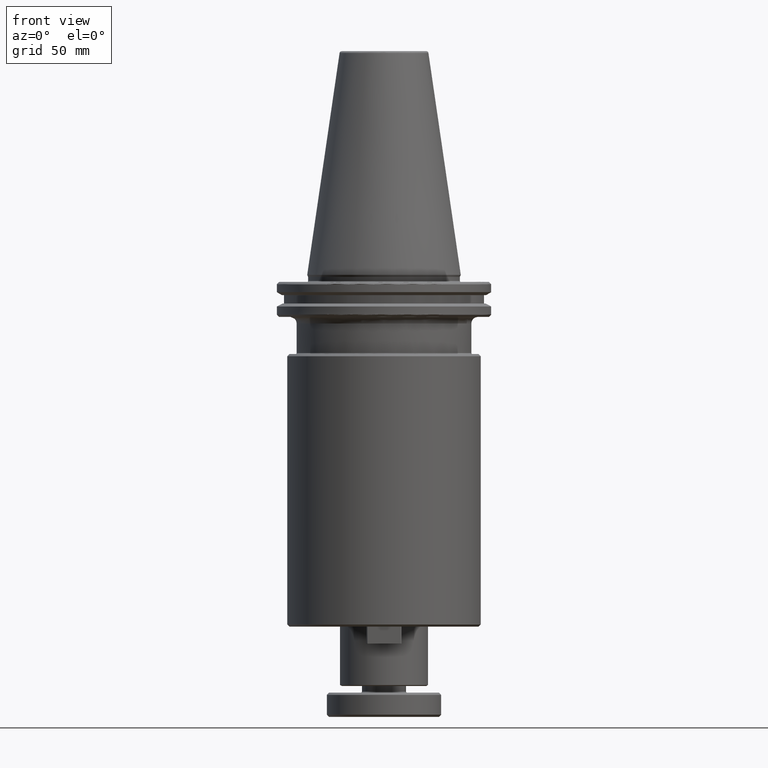
[diagram: clean part render]
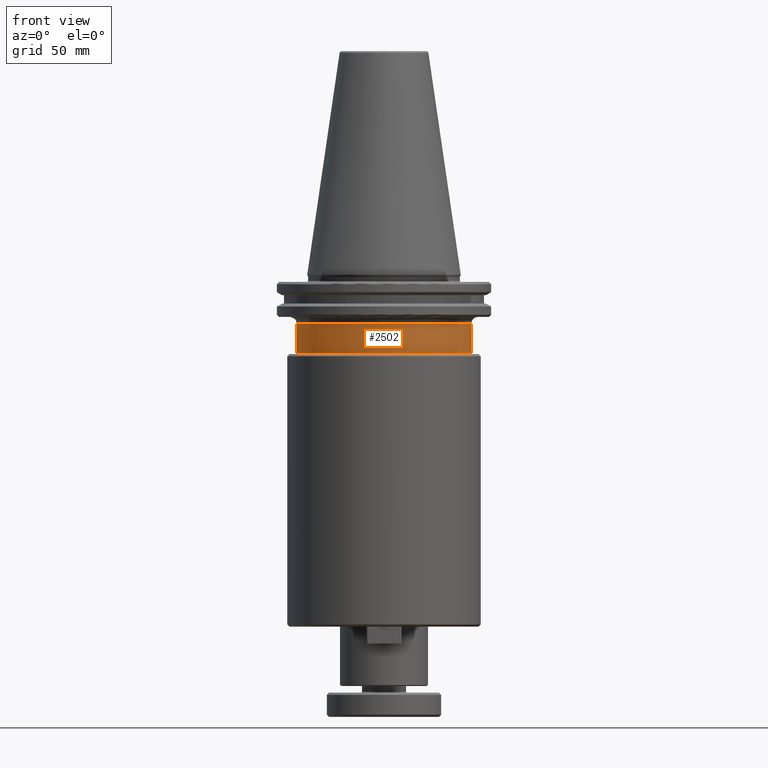
[diagram: same view with one face highlighted and labeled with its STEP entity id]
A machine part, front view. The second image highlights one B-rep face of the part: STEP entity #2502.
In plain terms, the highlighted cylindrical surface (partial cylindrical patch) has radius 39.75 mm, axis along (0, 0, 1).
Its self-contained STEP definition (entity closure, byte-faithful):
#20 = VECTOR ( 'NONE', #4366, 1000.000000000000000 ) ;
#230 = CARTESIAN_POINT ( 'NONE',  ( -37.77224916958941500, -12.38223294363549300, -22.10000000000000900 ) ) ;
#235 = ORIENTED_EDGE ( 'NONE', *, *, #565, .T. ) ;
#388 = VERTEX_POINT ( 'NONE', #230 ) ;
#565 = EDGE_CURVE ( 'NONE', #2065, #884, #2681, .T. ) ;
#754 = FACE_OUTER_BOUND ( 'NONE', #1016, .T. ) ;
#802 = DIRECTION ( 'NONE',  ( 1.000000000000000000, 0.0000000000000000000, 0.0000000000000000000 ) ) ;
#816 = CYLINDRICAL_SURFACE ( 'NONE', #4082, 39.75000000000000000 ) ;
#859 = DIRECTION ( 'NONE',  ( -0.0000000000000000000, -0.0000000000000000000, 1.000000000000000000 ) ) ;
#884 = VERTEX_POINT ( 'NONE', #2960 ) ;
#890 = CARTESIAN_POINT ( 'NONE',  ( 37.62316440705114200, -12.82809416865966100, -22.10000000000000900 ) ) ;
#1016 = EDGE_LOOP ( 'NONE', ( #2206, #235, #3206, #3945, #2263, #1613 ) ) ;
#1017 = EDGE_CURVE ( 'NONE', #4435, #388, #3656, .T. ) ;
#1140 = CARTESIAN_POINT ( 'NONE',  ( 0.0000000000000000000, 0.0000000000000000000, -22.10000000000000900 ) ) ;
#1298 = EDGE_CURVE ( 'NONE', #2065, #4435, #4287, .T. ) ;
#1455 = DIRECTION ( 'NONE',  ( 1.000000000000000000, 0.0000000000000000000, 0.0000000000000000000 ) ) ;
#1461 = DIRECTION ( 'NONE',  ( 0.0000000000000000000, 0.0000000000000000000, 1.000000000000000000 ) ) ;
#1474 = CARTESIAN_POINT ( 'NONE',  ( 0.0000000000000000000, 0.0000000000000000000, 0.0000000000000000000 ) ) ;
#1505 = DIRECTION ( 'NONE',  ( -0.0000000000000000000, -0.0000000000000000000, 1.000000000000000000 ) ) ;
#1613 = ORIENTED_EDGE ( 'NONE', *, *, #1017, .F. ) ;
#1716 = EDGE_CURVE ( 'NONE', #884, #1965, #4851, .T. ) ;
#1741 = AXIS2_PLACEMENT_3D ( 'NONE', #1140, #859, #802 ) ;
#1930 = AXIS2_PLACEMENT_3D ( 'NONE', #4288, #2023, #4647 ) ;
#1958 = CARTESIAN_POINT ( 'NONE',  ( -39.75000000000000000, 4.867971026610729200E-015, 0.0000000000000000000 ) ) ;
#1965 = VERTEX_POINT ( 'NONE', #2627 ) ;
#1976 = AXIS2_PLACEMENT_3D ( 'NONE', #2159, #4781, #2534 ) ;
#2023 = DIRECTION ( 'NONE',  ( 0.0000000000000000000, 0.0000000000000000000, 1.000000000000000000 ) ) ;
#2065 = VERTEX_POINT ( 'NONE', #2386 ) ;
#2138 = CIRCLE ( 'NONE', #1741, 39.75000000000000000 ) ;
#2159 = CARTESIAN_POINT ( 'NONE',  ( 0.0000000000000000000, 0.0000000000000000000, -22.10000000000000500 ) ) ;
#2206 = ORIENTED_EDGE ( 'NONE', *, *, #1298, .F. ) ;
#2263 = ORIENTED_EDGE ( 'NONE', *, *, #4094, .T. ) ;
#2386 = CARTESIAN_POINT ( 'NONE',  ( -39.75000000000000000, 4.867971026610730000E-015, -35.50000000000001400 ) ) ;
#2502 = ADVANCED_FACE ( 'NONE', ( #754 ), #816, .T. ) ;
#2534 = DIRECTION ( 'NONE',  ( 1.000000000000000000, 0.0000000000000000000, 0.0000000000000000000 ) ) ;
#2627 = CARTESIAN_POINT ( 'NONE',  ( 39.75000000000000000, 0.0000000000000000000, -22.10000000000000900 ) ) ;
#2681 = CIRCLE ( 'NONE', #1930, 39.74999999999999300 ) ;
#2960 = CARTESIAN_POINT ( 'NONE',  ( 39.74999999999999300, 0.0000000000000000000, -35.50000000000001400 ) ) ;
#3079 = VERTEX_POINT ( 'NONE', #890 ) ;
#3206 = ORIENTED_EDGE ( 'NONE', *, *, #1716, .T. ) ;
#3209 = VECTOR ( 'NONE', #3581, 1000.000000000000000 ) ;
#3336 = EDGE_CURVE ( 'NONE', #3079, #1965, #2138, .T. ) ;
#3354 = CARTESIAN_POINT ( 'NONE',  ( -39.75000000000000000, 4.867971026610729200E-015, -22.10000000000000900 ) ) ;
#3581 = DIRECTION ( 'NONE',  ( 0.0000000000000000000, 0.0000000000000000000, 1.000000000000000000 ) ) ;
#3614 = CARTESIAN_POINT ( 'NONE',  ( 39.75000000000000000, 0.0000000000000000000, 0.0000000000000000000 ) ) ;
#3656 = CIRCLE ( 'NONE', #4527, 39.75000000000000000 ) ;
#3798 = CARTESIAN_POINT ( 'NONE',  ( 0.0000000000000000000, 0.0000000000000000000, -22.10000000000000900 ) ) ;
#3850 = CIRCLE ( 'NONE', #1976, 39.75000000000000000 ) ;
#3945 = ORIENTED_EDGE ( 'NONE', *, *, #3336, .F. ) ;
#4082 = AXIS2_PLACEMENT_3D ( 'NONE', #1474, #1461, #1455 ) ;
#4094 = EDGE_CURVE ( 'NONE', #3079, #388, #3850, .T. ) ;
#4154 = DIRECTION ( 'NONE',  ( 1.000000000000000000, 0.0000000000000000000, 0.0000000000000000000 ) ) ;
#4287 = LINE ( 'NONE', #1958, #20 ) ;
#4288 = CARTESIAN_POINT ( 'NONE',  ( 0.0000000000000000000, 0.0000000000000000000, -35.50000000000001400 ) ) ;
#4366 = DIRECTION ( 'NONE',  ( 0.0000000000000000000, 0.0000000000000000000, 1.000000000000000000 ) ) ;
#4435 = VERTEX_POINT ( 'NONE', #3354 ) ;
#4527 = AXIS2_PLACEMENT_3D ( 'NONE', #3798, #1505, #4154 ) ;
#4647 = DIRECTION ( 'NONE',  ( 1.000000000000000000, 0.0000000000000000000, 0.0000000000000000000 ) ) ;
#4781 = DIRECTION ( 'NONE',  ( -0.0000000000000000000, -0.0000000000000000000, -1.000000000000000000 ) ) ;
#4851 = LINE ( 'NONE', #3614, #3209 ) ;